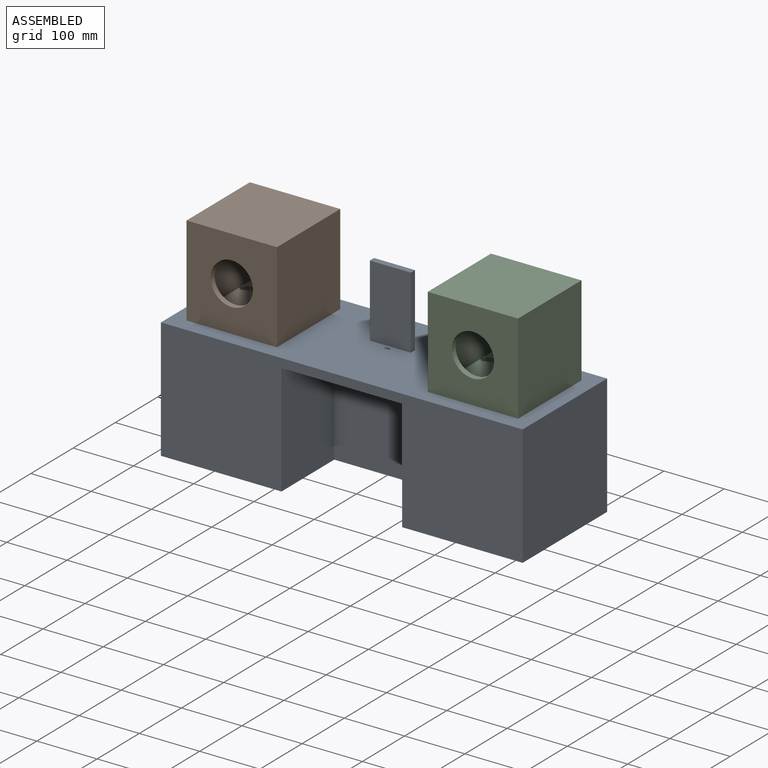
[diagram: assembled view]
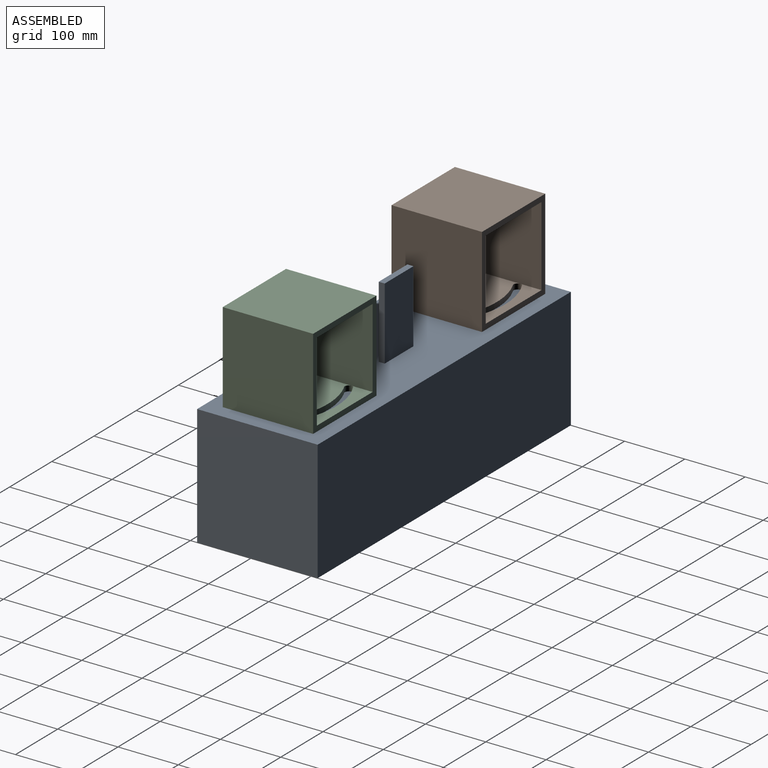
[diagram: assembled view, second angle]
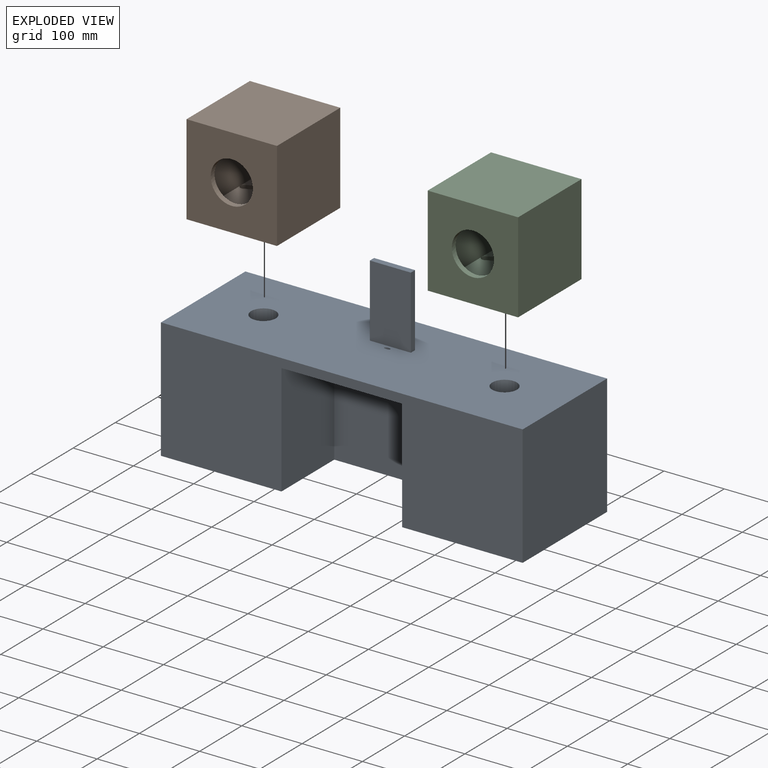
[diagram: exploded view]
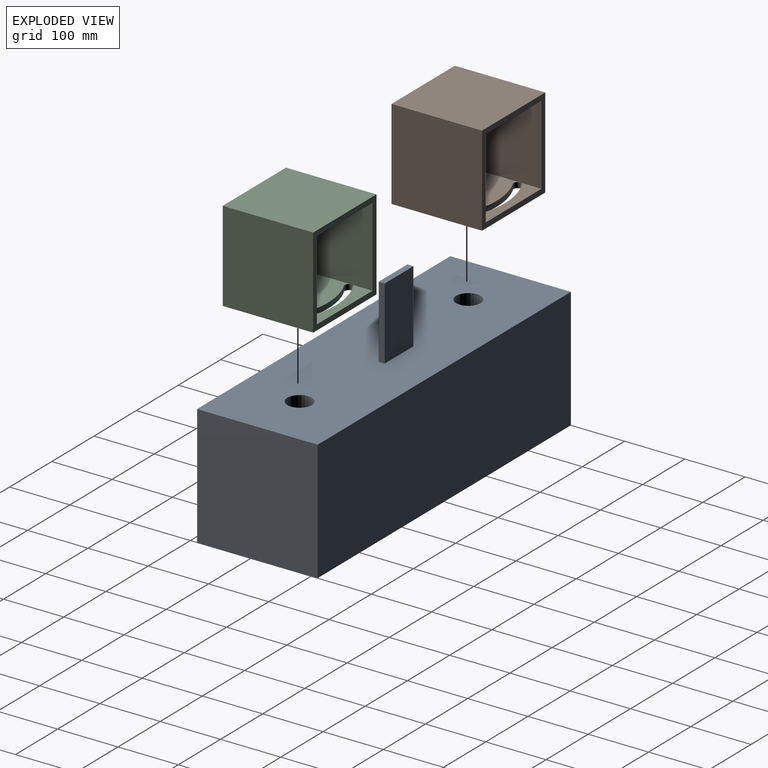
[diagram: exploded view, second angle]
ASSEMBLY  parts=3 mates=2
PART A: 22 faces, bbox 600x200x320 mm
  f0: plane 200x185mm, normal (0,-1,0), area 36971.7mm2, adj f1,f2,f8,f9,f16
  f1: plane 185x125mm, normal (1,0,0), area 23125mm2, adj f0,f3,f8,f9
  f2: plane 185x125mm, normal (-1,0,0), area 23125mm2, adj f0,f3,f8,f9
  f3: plane 600x200mm, normal (0,-1,0), area 83000mm2, adj f1,f2,f4,f6,f7,f8,f9
  f4: plane 200x200mm, normal (1,0,0), area 40000mm2, adj f3,f5,f7,f8
  f5: plane 600x200mm, normal (0,1,0), area 120000mm2, adj f4,f6,f7,f8
  f6: plane 200x200mm, normal (-1,0,0), area 40000mm2, adj f3,f5,f7,f8
  f7: plane 600x200mm, normal (0,0,1), area 116640.2mm2, adj f3,f4,f5,f6,f10,f11,f12,f13
  f8: plane 600x200mm, normal (0,0,-1), area 95000mm2, adj f0,f1,f2,f3,f4,f5,f6
  f9: plane 200x125mm, normal (0,0,-1), area 24960.7mm2, adj f0,f1,f2,f3,f15
  f10: plane 120x10mm, normal (-1,0,0), area 1200mm2, adj f7,f11,f13,f14
  f11: plane 120x68mm, normal (0,-1,0), area 8160mm2, adj f7,f10,f12,f14
  f12: plane 120x10mm, normal (1,0,0), area 1200mm2, adj f7,f11,f13,f14
  f13: plane 120x68mm, normal (0,1,0), area 8160mm2, adj f7,f10,f12,f14
  f14: plane 68x10mm, normal (0,0,1), area 680mm2, adj f10,f11,f12,f13
  f15: extruded ~15x10mm, area 363.3mm2, adj f7,f9
  f16: cylinder r=3mm len=6mm, axis (0,-1,0), area 94.2mm2, adj f0,f17
  f17: plane 6x6mm, normal (0,-1,0), area 28.3mm2, adj f16
  f18: cylinder r=20.5mm len=41mm, axis (0,0,1), area 3220.1mm2, adj f7,f19
  f19: plane 41x41mm, normal (0,0,1), area 1320.3mm2, adj f18
  f20: cylinder r=20.5mm len=41mm, axis (0,0,1), area 3220.1mm2, adj f7,f21
  f21: plane 41x41mm, normal (0,0,1), area 1320.3mm2, adj f20
PART B: 20 faces, bbox 150x150x150 mm
  f0: plane 132x113.3mm, normal (0,0,1), area 12879.1mm2, adj f8,f9,f11,f12,f16,f17,f19
  f1: plane 132x34.41mm, normal (0,0,1), area 2618.9mm2, adj f8,f9,f10,f16,f18,f19
  f2: plane 150x150mm, normal (-1,0,0), area 22500mm2, adj f3,f5,f6,f10
  f3: plane 150x150mm, normal (0,0,-1), area 19369.3mm2, adj f2,f4,f6,f10,f12,f16,f17,f18
  f4: plane 150x150mm, normal (1,0,0), area 22500mm2, adj f3,f5,f6,f10
  f5: plane 150x150mm, normal (0,0,1), area 22500mm2, adj f2,f4,f6,f10
  f6: plane 150x150mm, normal (0,1,0), area 18651.5mm2, adj f2,f3,f4,f5,f13
  f7: plane 141x132mm, normal (0,0,-1), area 18612mm2, adj f8,f9,f10,f11
  f8: plane 141x132mm, normal (-1,0,0), area 18612mm2, adj f0,f1,f7,f10,f11,f15
  f9: plane 141x132mm, normal (1,0,0), area 18612mm2, adj f0,f1,f7,f10,f11,f14
  f10: plane 150x150mm, normal (0,-1,0), area 5076mm2, adj f1,f2,f3,f4,f5,f7,f8,f9
  f11: plane 132x132mm, normal (0,-1,0), area 13575.5mm2, adj f0,f7,f8,f9,f13
  f12: cylinder r=20.5mm len=41mm, axis (0,0,-1), area 1159.2mm2, adj f0,f3
  f13: cylinder r=35mm len=70mm, axis (0,1,0), area 1979.2mm2, adj f6,f11
  f14: plane 10.36x2.33mm, normal (0,0,-1), area 16.7mm2, adj f9,f19
  f15: plane 1.19x0.03mm, normal (0,0,-1), area 0mm2, adj f8,f16
  f16: cylinder r=6.65mm len=11.03mm, axis (0,0,-1), area 170.7mm2, adj f0,f1,f3,f15,f17,f18
  f17: cylinder r=129.12mm len=110mm, axis (0,0,-1), area 1022.7mm2, adj f0,f3,f16,f19
  f18: cylinder r=129.78mm len=130mm, axis (0,0,-1), area 1225.4mm2, adj f1,f3,f16,f19
  f19: cylinder r=6.92mm len=13.33mm, axis (0,0,-1), area 235.3mm2, adj f0,f1,f3,f14,f17,f18
PART C: same geometry as B
PLACE A t=(-125.54,73.34,-36.21)mm
PLACE B rot(axis=(0,0,1),180deg) t=(-325.54,-101.66,238.79)mm
PLACE C rot(axis=(0,0,1),180deg) t=(74.46,-101.66,238.79)mm
MATE revolute C.f12 <-> A.f18  axis (0,0,-1) through (74.46,-26.66,163.79)mm
MATE revolute B.f12 <-> A.f20  axis (0,0,-1) through (-325.54,-26.66,163.79)mm
